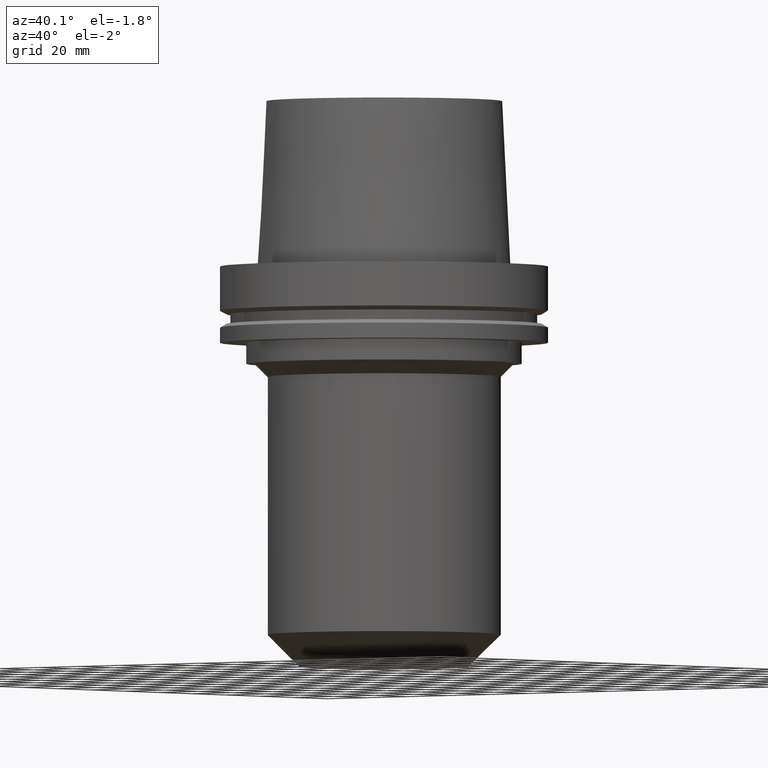
[diagram: clean part render]
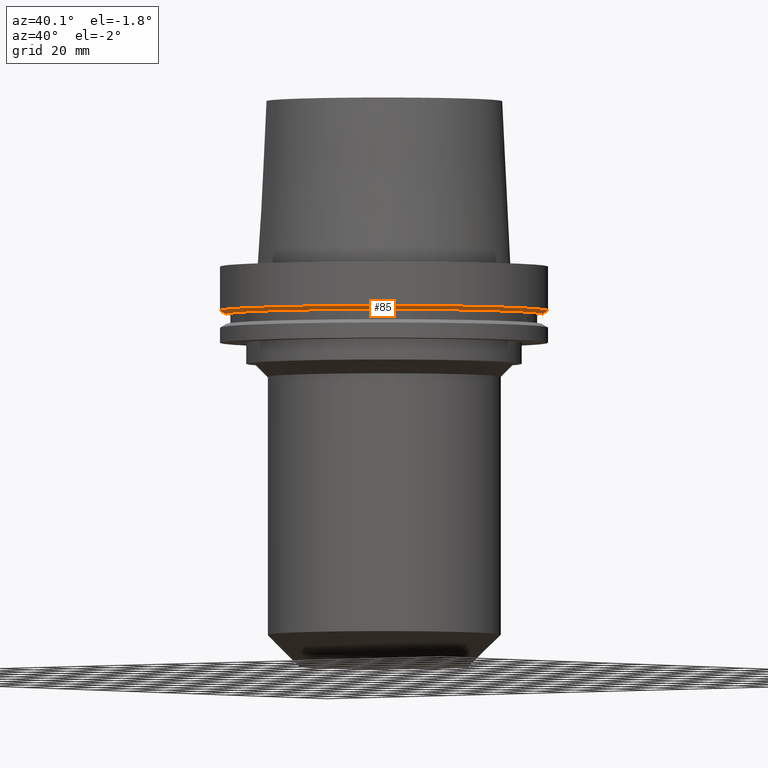
[diagram: same view with one face highlighted and labeled with its STEP entity id]
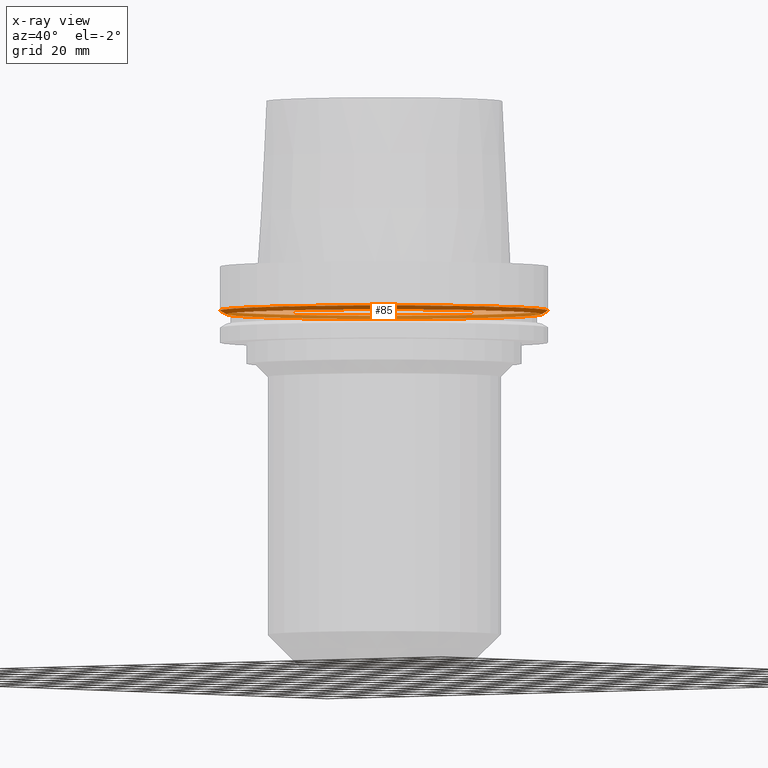
[diagram: x-ray of the same camera — body ghosted, the highlighted face saturated]
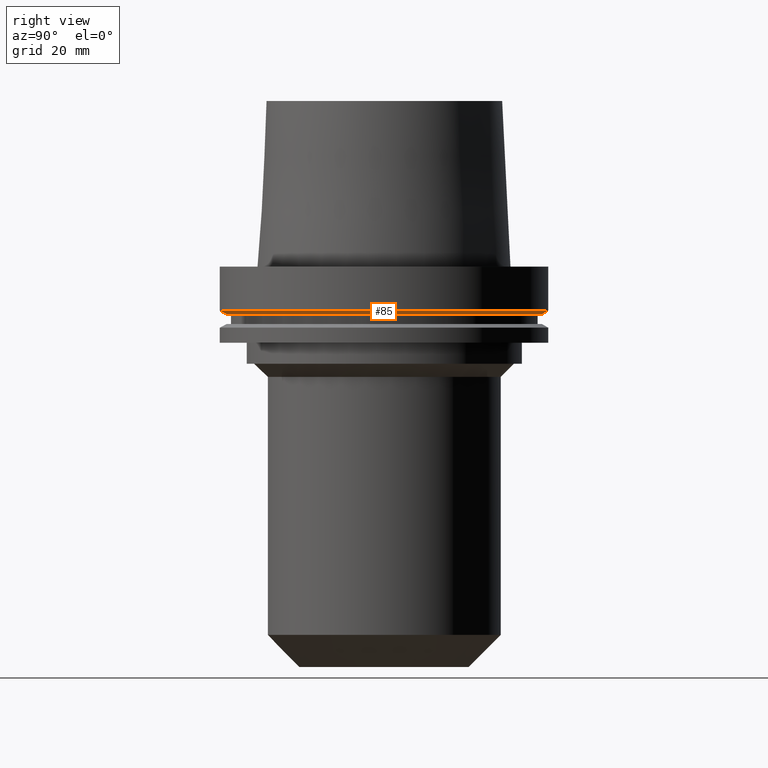
[diagram: same view with one face highlighted and labeled with its STEP entity id]
A machine part, auxiliary view. The second image highlights one B-rep face of the part: STEP entity #85.
The next image is the same camera in x-ray: the body ghosted, the highlighted face saturated — about 45% of this face is hidden behind the body in this view.
A second angle (right view) of the same face is appended — the face is thin or edge-on in the first view.
In plain terms, the highlighted conical surface has half-angle 60 deg.
Its self-contained STEP definition (entity closure, byte-faithful):
#65=EDGE_CURVE('Unnamed[1]',#169,#169,#170,.T.);
#75=EDGE_CURVE('Unnamed[1]',#185,#185,#186,.T.);
#85=ADVANCED_FACE('Unnamed[1]',(#200,#201),#202,.T.);
#169=VERTEX_POINT('',#312);
#170=CIRCLE('',#313,62.5);
#185=VERTEX_POINT('',#332);
#186=CIRCLE('',#333,60.1225952641912);
#200=FACE_BOUND('',#351,.T.);
#201=FACE_BOUND('',#352,.T.);
#202=CONICAL_SURFACE('',#353,61.3112976320956,1.04719755119668);
#312=CARTESIAN_POINT('',(1.02578894188644E-015,62.5,-16.7524047358084));
#313=AXIS2_PLACEMENT_3D('',#474,#475,#476);
#332=CARTESIAN_POINT('',(1.10983616172729E-015,60.1225952641912,-18.1250000000001));
#333=AXIS2_PLACEMENT_3D('',#492,#493,#494);
#351=EDGE_LOOP('',(#508));
#352=EDGE_LOOP('',(#509));
#353=AXIS2_PLACEMENT_3D('',#510,#511,#512);
#474=CARTESIAN_POINT('',(1.02578894188644E-015,2.05157788377287E-015,-16.7524047358084));
#475=DIRECTION('',(6.12323399573676E-017,1.22464679914723E-016,-1.0));
#476=DIRECTION('',(-1.23259516440783E-032,1.0,1.22464679914723E-016));
#492=CARTESIAN_POINT('',(1.10983616172729E-015,2.21967232345459E-015,-18.1250000000001));
#493=DIRECTION('',(6.12323399573677E-017,1.22464679914743E-016,-1.0));
#494=DIRECTION('',(-1.23259516440797E-032,1.0,1.22464679914743E-016));
#508=ORIENTED_EDGE('',*,*,#75,.F.);
#509=ORIENTED_EDGE('',*,*,#65,.T.);
#510=CARTESIAN_POINT('',(1.06781255180686E-015,2.13562510361373E-015,-17.4387023679042));
#511=DIRECTION('',(-6.12323399573676E-017,-1.22464679914786E-016,1.0));
#512=DIRECTION('',(-1.23259516440761E-032,1.0,1.22464679914786E-016));